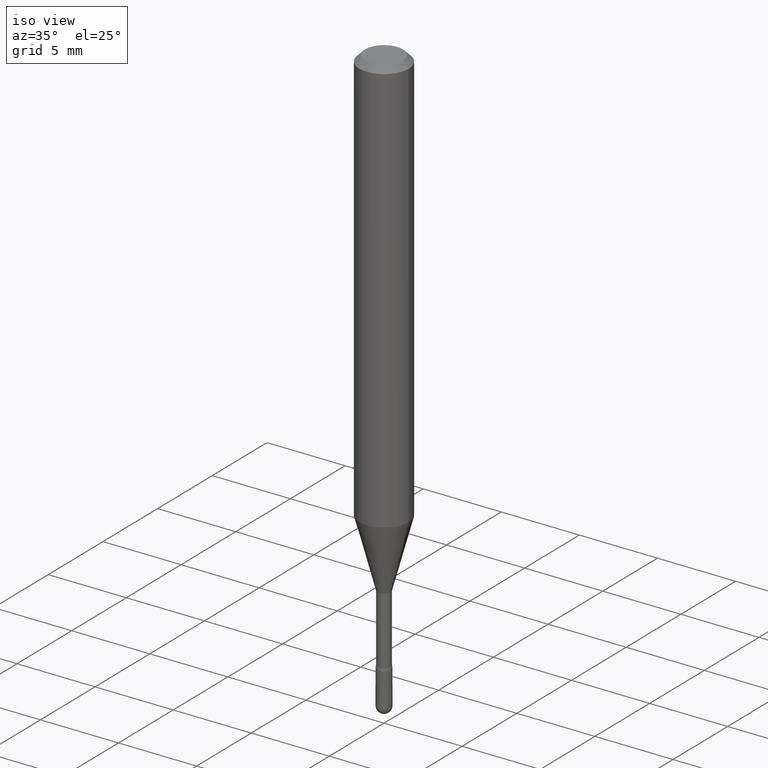
[diagram: clean part render]
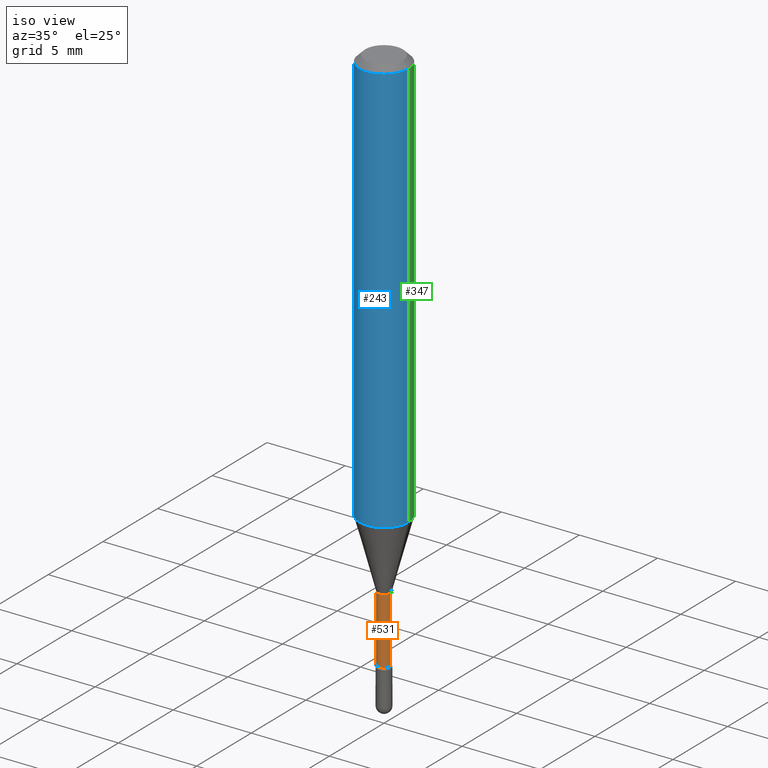
[diagram: same view with three faces highlighted in distinct colors, each labeled with its STEP entity id]
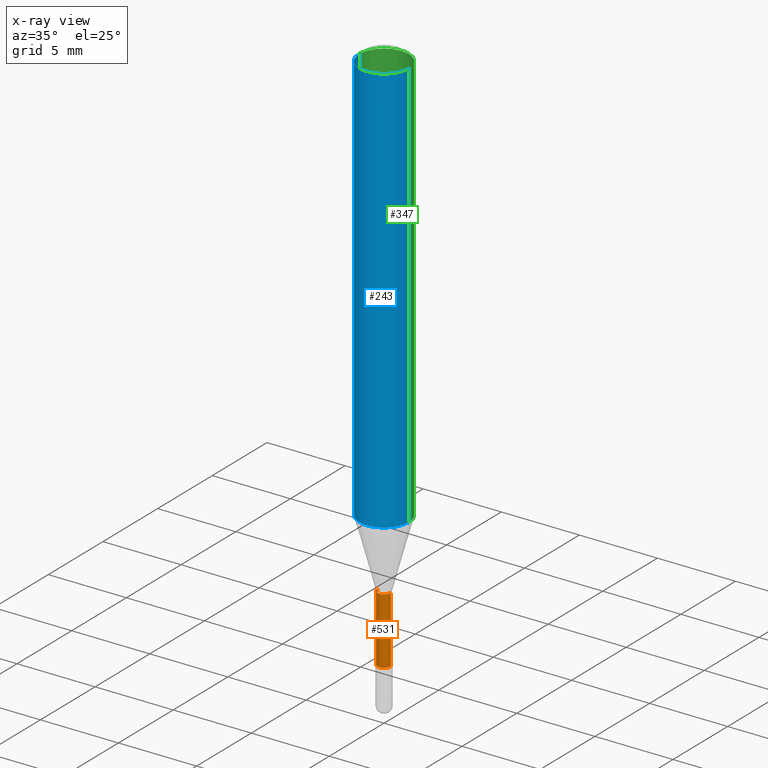
[diagram: x-ray of the same camera — body ghosted, the three highlighted faces saturated]
A machine part, iso view with three faces highlighted in distinct colors.
The next image is the same camera in x-ray (body ghosted, the three faces saturated) — at least one of them is partly hidden behind the body in this view.
Their STEP definitions:

[orange] entity #531 — the highlighted cylindrical surface (edge-blend (fillet) strip) has radius 0.4178 mm, axis along (-0, 0, 1).
#16 = CIRCLE ( 'NONE', #33, 0.01645000000000006180 ) ;
#28 = CARTESIAN_POINT ( 'NONE',  ( -0.01644999999999999588, -4.442050083282912948E-15, -1.221974787463810941 ) ) ;
#33 = AXIS2_PLACEMENT_3D ( 'NONE', #74, #64, #508 ) ;
#35 = DIRECTION ( 'NONE',  ( -2.445468806185136877E-29, 3.491481338843145188E-15, 1.000000000000000000 ) ) ;
#46 = EDGE_CURVE ( 'NONE', #58, #235, #546, .T. ) ;
#58 = VERTEX_POINT ( 'NONE', #28 ) ;
#61 = VECTOR ( 'NONE', #115, 39.37007874015748143 ) ;
#64 = DIRECTION ( 'NONE',  ( -2.445468806185136597E-29, 3.491481338843145583E-15, 1.000000000000000000 ) ) ;
#68 = DIRECTION ( 'NONE',  ( 1.000000000000000000, -6.982962677686254089E-15, 0.000000000000000000 ) ) ;
#74 = CARTESIAN_POINT ( 'NONE',  ( 3.397946154556677144E-29, -4.851366559664184684E-15, -1.389486607215153491 ) ) ;
#87 = CARTESIAN_POINT ( 'NONE',  ( 0.01645000000000006180, -4.966236295712124352E-15, -1.389486607215153491 ) ) ;
#102 = ORIENTED_EDGE ( 'NONE', *, *, #476, .T. ) ;
#115 = DIRECTION ( 'NONE',  ( -2.445468806185136877E-29, 3.491481338843145188E-15, 1.000000000000000000 ) ) ;
#131 = LINE ( 'NONE', #300, #198 ) ;
#153 = VERTEX_POINT ( 'NONE', #87 ) ;
#165 = AXIS2_PLACEMENT_3D ( 'NONE', #545, #326, #505 ) ;
#178 = EDGE_CURVE ( 'NONE', #488, #58, #131, .T. ) ;
#193 = EDGE_LOOP ( 'NONE', ( #369, #102, #499, #407 ) ) ;
#198 = VECTOR ( 'NONE', #35, 39.37007874015748143 ) ;
#235 = VERTEX_POINT ( 'NONE', #478 ) ;
#287 = CARTESIAN_POINT ( 'NONE',  ( 2.988301224687461483E-29, -4.266502166966714459E-15, -1.221974787463810941 ) ) ;
#300 = CARTESIAN_POINT ( 'NONE',  ( -0.01645000000000003057, 1.168842800325383741E-16, 4.780733988912453237E-16 ) ) ;
#326 = DIRECTION ( 'NONE',  ( -2.445468806185136597E-29, 3.491481338843145583E-15, 1.000000000000000000 ) ) ;
#331 = LINE ( 'NONE', #510, #61 ) ;
#367 = CYLINDRICAL_SURFACE ( 'NONE', #165, 0.01645000000000003057 ) ;
#369 = ORIENTED_EDGE ( 'NONE', *, *, #178, .F. ) ;
#407 = ORIENTED_EDGE ( 'NONE', *, *, #46, .F. ) ;
#459 = DIRECTION ( 'NONE',  ( -2.445468806185136597E-29, 3.491481338843145583E-15, 1.000000000000000000 ) ) ;
#464 = AXIS2_PLACEMENT_3D ( 'NONE', #287, #459, #68 ) ;
#476 = EDGE_CURVE ( 'NONE', #488, #153, #16, .T. ) ;
#478 = CARTESIAN_POINT ( 'NONE',  ( 0.01644999999999999588, -4.381371903014653338E-15, -1.221974787463810941 ) ) ;
#488 = VERTEX_POINT ( 'NONE', #543 ) ;
#499 = ORIENTED_EDGE ( 'NONE', *, *, #559, .T. ) ;
#500 = FACE_OUTER_BOUND ( 'NONE', #193, .T. ) ;
#505 = DIRECTION ( 'NONE',  ( 1.000000000000000000, -6.982962677686266711E-15, 4.793737027410003602E-29 ) ) ;
#508 = DIRECTION ( 'NONE',  ( 1.000000000000000000, -6.982962677686256455E-15, 0.000000000000000000 ) ) ;
#510 = CARTESIAN_POINT ( 'NONE',  ( 0.01645000000000003057, -1.148697360479376465E-16, 4.780733988912468028E-16 ) ) ;
#531 = ADVANCED_FACE ( 'NONE', ( #500 ), #367, .T. ) ;
#543 = CARTESIAN_POINT ( 'NONE',  ( -0.01645000000000006180, -4.740376884279908534E-15, -1.389486607215153491 ) ) ;
#545 = CARTESIAN_POINT ( 'NONE',  ( -1.169113584055446105E-44, 1.669184350826100908E-30, 4.780733988912460139E-16 ) ) ;
#546 = CIRCLE ( 'NONE', #464, 0.01644999999999999588 ) ;
#559 = EDGE_CURVE ( 'NONE', #153, #235, #331, .T. ) ;

[blue] entity #243 — the highlighted cylindrical surface (edge-blend (fillet) strip) has radius 1.5875 mm, axis along (-0, 0, 1).
#20 = VERTEX_POINT ( 'NONE', #65 ) ;
#39 = CYLINDRICAL_SURFACE ( 'NONE', #116, 0.06250000000000000000 ) ;
#41 = AXIS2_PLACEMENT_3D ( 'NONE', #220, #525, #523 ) ;
#44 = CARTESIAN_POINT ( 'NONE',  ( 3.668203209277725232E-31, -5.237222008264747365E-17, -0.01500000000000008271 ) ) ;
#65 = CARTESIAN_POINT ( 'NONE',  ( -0.06250000000000000000, -3.215468759739966983E-15, -1.048139060311453319 ) ) ;
#71 = CIRCLE ( 'NONE', #483, 0.06250000000000000000 ) ;
#83 = DIRECTION ( 'NONE',  ( 1.000000000000000000, -6.982962677686266711E-15, 0.000000000000000000 ) ) ;
#85 = FACE_OUTER_BOUND ( 'NONE', #245, .T. ) ;
#116 = AXIS2_PLACEMENT_3D ( 'NONE', #216, #390, #177 ) ;
#133 = EDGE_CURVE ( 'NONE', #20, #440, #290, .T. ) ;
#136 = CARTESIAN_POINT ( 'NONE',  ( -0.06250000000000000000, 4.440892098500642925E-16, 4.780733988912429571E-16 ) ) ;
#147 = ORIENTED_EDGE ( 'NONE', *, *, #501, .T. ) ;
#151 = DIRECTION ( 'NONE',  ( -2.445468806185136877E-29, 3.491481338843145188E-15, 1.000000000000000000 ) ) ;
#177 = DIRECTION ( 'NONE',  ( 1.000000000000000000, -6.982962677686266711E-15, 4.852736867747366207E-29 ) ) ;
#190 = VECTOR ( 'NONE', #451, 39.37007874015748143 ) ;
#199 = LINE ( 'NONE', #334, #200 ) ;
#200 = VECTOR ( 'NONE', #151, 39.37007874015748143 ) ;
#205 = ORIENTED_EDGE ( 'NONE', *, *, #215, .F. ) ;
#215 = EDGE_CURVE ( 'NONE', #413, #544, #71, .T. ) ;
#216 = CARTESIAN_POINT ( 'NONE',  ( -1.169113584055446105E-44, 1.669184350826100908E-30, 4.780733988912460139E-16 ) ) ;
#220 = CARTESIAN_POINT ( 'NONE',  ( 2.563191376535860967E-29, -3.659557969590029993E-15, -1.048139060311453319 ) ) ;
#239 = CARTESIAN_POINT ( 'NONE',  ( 0.06250000000000000000, -4.888073874380391431E-16, -0.01500000000000008271 ) ) ;
#243 = ADVANCED_FACE ( 'NONE', ( #85 ), #39, .T. ) ;
#245 = EDGE_LOOP ( 'NONE', ( #493, #447, #147, #205 ) ) ;
#290 = CIRCLE ( 'NONE', #41, 0.06250000000000000000 ) ;
#311 = LINE ( 'NONE', #136, #190 ) ;
#334 = CARTESIAN_POINT ( 'NONE',  ( 0.06250000000000000000, -4.364351673553899931E-16, 4.780733988912490708E-16 ) ) ;
#376 = EDGE_CURVE ( 'NONE', #20, #413, #311, .T. ) ;
#390 = DIRECTION ( 'NONE',  ( -2.445468806185136597E-29, 3.491481338843145583E-15, 1.000000000000000000 ) ) ;
#397 = CARTESIAN_POINT ( 'NONE',  ( -0.06250000000000000000, -1.411875884986276117E-15, -0.01500000000000008271 ) ) ;
#413 = VERTEX_POINT ( 'NONE', #397 ) ;
#440 = VERTEX_POINT ( 'NONE', #530 ) ;
#447 = ORIENTED_EDGE ( 'NONE', *, *, #133, .T. ) ;
#451 = DIRECTION ( 'NONE',  ( -2.445468806185136877E-29, 3.491481338843145188E-15, 1.000000000000000000 ) ) ;
#472 = DIRECTION ( 'NONE',  ( -2.445468806185136597E-29, 3.491481338843145583E-15, 1.000000000000000000 ) ) ;
#483 = AXIS2_PLACEMENT_3D ( 'NONE', #44, #472, #83 ) ;
#493 = ORIENTED_EDGE ( 'NONE', *, *, #376, .F. ) ;
#501 = EDGE_CURVE ( 'NONE', #440, #544, #199, .T. ) ;
#523 = DIRECTION ( 'NONE',  ( 1.000000000000000000, -6.982962677686270655E-15, 0.000000000000000000 ) ) ;
#525 = DIRECTION ( 'NONE',  ( -2.445468806185136597E-29, 3.491481338843145583E-15, 1.000000000000000000 ) ) ;
#530 = CARTESIAN_POINT ( 'NONE',  ( 0.06250000000000000000, -4.095993136945421663E-15, -1.048139060311453319 ) ) ;
#544 = VERTEX_POINT ( 'NONE', #239 ) ;

[green] entity #347 — the highlighted cylindrical surface (edge-blend (fillet) strip) has radius 1.5875 mm, axis along (-0, 0, 1).
#20 = VERTEX_POINT ( 'NONE', #65 ) ;
#47 = CYLINDRICAL_SURFACE ( 'NONE', #343, 0.06250000000000000000 ) ;
#65 = CARTESIAN_POINT ( 'NONE',  ( -0.06250000000000000000, -3.215468759739966983E-15, -1.048139060311453319 ) ) ;
#75 = EDGE_CURVE ( 'NONE', #544, #413, #208, .T. ) ;
#136 = CARTESIAN_POINT ( 'NONE',  ( -0.06250000000000000000, 4.440892098500642925E-16, 4.780733988912429571E-16 ) ) ;
#143 = ORIENTED_EDGE ( 'NONE', *, *, #376, .T. ) ;
#149 = ORIENTED_EDGE ( 'NONE', *, *, #455, .T. ) ;
#151 = DIRECTION ( 'NONE',  ( -2.445468806185136877E-29, 3.491481338843145188E-15, 1.000000000000000000 ) ) ;
#156 = AXIS2_PLACEMENT_3D ( 'NONE', #246, #194, #515 ) ;
#167 = CARTESIAN_POINT ( 'NONE',  ( 3.668203209277725232E-31, -5.237222008264747365E-17, -0.01500000000000008271 ) ) ;
#170 = DIRECTION ( 'NONE',  ( 1.000000000000000000, -6.982962677686266711E-15, 0.000000000000000000 ) ) ;
#182 = AXIS2_PLACEMENT_3D ( 'NONE', #167, #305, #170 ) ;
#190 = VECTOR ( 'NONE', #451, 39.37007874015748143 ) ;
#194 = DIRECTION ( 'NONE',  ( -2.445468806185136597E-29, 3.491481338843145583E-15, 1.000000000000000000 ) ) ;
#199 = LINE ( 'NONE', #334, #200 ) ;
#200 = VECTOR ( 'NONE', #151, 39.37007874015748143 ) ;
#208 = CIRCLE ( 'NONE', #182, 0.06250000000000000000 ) ;
#239 = CARTESIAN_POINT ( 'NONE',  ( 0.06250000000000000000, -4.888073874380391431E-16, -0.01500000000000008271 ) ) ;
#246 = CARTESIAN_POINT ( 'NONE',  ( 2.563191376535860967E-29, -3.659557969590029993E-15, -1.048139060311453319 ) ) ;
#260 = CIRCLE ( 'NONE', #156, 0.06250000000000000000 ) ;
#279 = ORIENTED_EDGE ( 'NONE', *, *, #75, .F. ) ;
#280 = DIRECTION ( 'NONE',  ( -2.445468806185136597E-29, 3.491481338843145583E-15, 1.000000000000000000 ) ) ;
#305 = DIRECTION ( 'NONE',  ( -2.445468806185136597E-29, 3.491481338843145583E-15, 1.000000000000000000 ) ) ;
#311 = LINE ( 'NONE', #136, #190 ) ;
#334 = CARTESIAN_POINT ( 'NONE',  ( 0.06250000000000000000, -4.364351673553899931E-16, 4.780733988912490708E-16 ) ) ;
#343 = AXIS2_PLACEMENT_3D ( 'NONE', #491, #280, #439 ) ;
#347 = ADVANCED_FACE ( 'NONE', ( #534 ), #47, .T. ) ;
#376 = EDGE_CURVE ( 'NONE', #20, #413, #311, .T. ) ;
#397 = CARTESIAN_POINT ( 'NONE',  ( -0.06250000000000000000, -1.411875884986276117E-15, -0.01500000000000008271 ) ) ;
#413 = VERTEX_POINT ( 'NONE', #397 ) ;
#431 = ORIENTED_EDGE ( 'NONE', *, *, #501, .F. ) ;
#439 = DIRECTION ( 'NONE',  ( 1.000000000000000000, -6.982962677686266711E-15, 4.852736867747366207E-29 ) ) ;
#440 = VERTEX_POINT ( 'NONE', #530 ) ;
#451 = DIRECTION ( 'NONE',  ( -2.445468806185136877E-29, 3.491481338843145188E-15, 1.000000000000000000 ) ) ;
#455 = EDGE_CURVE ( 'NONE', #440, #20, #260, .T. ) ;
#491 = CARTESIAN_POINT ( 'NONE',  ( -1.169113584055446105E-44, 1.669184350826100908E-30, 4.780733988912460139E-16 ) ) ;
#501 = EDGE_CURVE ( 'NONE', #440, #544, #199, .T. ) ;
#515 = DIRECTION ( 'NONE',  ( 1.000000000000000000, -6.982962677686270655E-15, 0.000000000000000000 ) ) ;
#517 = EDGE_LOOP ( 'NONE', ( #149, #143, #279, #431 ) ) ;
#530 = CARTESIAN_POINT ( 'NONE',  ( 0.06250000000000000000, -4.095993136945421663E-15, -1.048139060311453319 ) ) ;
#534 = FACE_OUTER_BOUND ( 'NONE', #517, .T. ) ;
#544 = VERTEX_POINT ( 'NONE', #239 ) ;